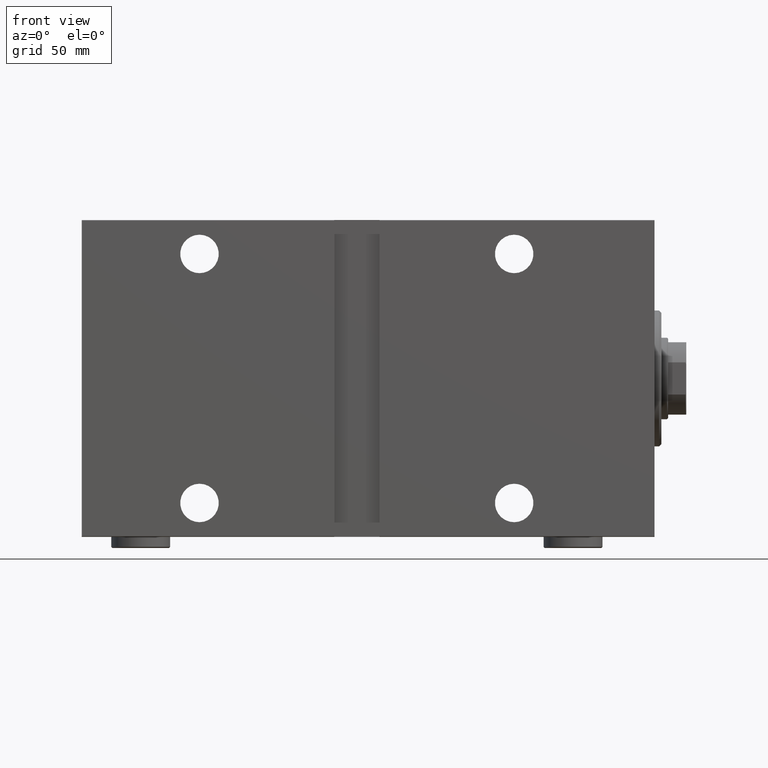
[diagram: clean part render]
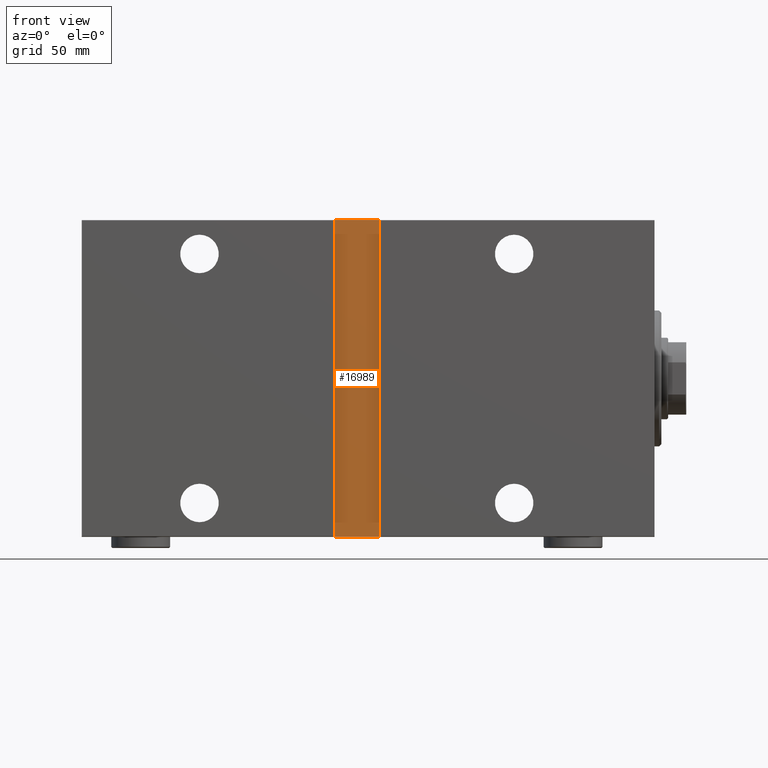
[diagram: same view with one face highlighted and labeled with its STEP entity id]
A machine part, front view. The second image highlights one B-rep face of the part: STEP entity #16989.
In plain terms, the highlighted planar face has unit normal (-0, 1, -0).
Its self-contained STEP definition (entity closure, byte-faithful):
#3310 = PLANE ( 'NONE',  #15934 ) ;
#4368 = EDGE_CURVE ( 'NONE', #8329, #40244, #15981, .T. ) ;
#8087 = VECTOR ( 'NONE', #15318, 1000.000000000000000 ) ;
#8329 = VERTEX_POINT ( 'NONE', #20717 ) ;
#8333 = CARTESIAN_POINT ( 'NONE',  ( 141.5000000000000284, 50.00000000000001421, -70.00000000000009948 ) ) ;
#9428 = ORIENTED_EDGE ( 'NONE', *, *, #18644, .T. ) ;
#10242 = VECTOR ( 'NONE', #12143, 1000.000000000000000 ) ;
#12143 = DIRECTION ( 'NONE',  ( -1.000000000000000000, 0.000000000000000000, 0.000000000000000000 ) ) ;
#13197 = DIRECTION ( 'NONE',  ( 0.000000000000000000, -1.000000000000000000, -9.912705577010316921E-17 ) ) ;
#15318 = DIRECTION ( 'NONE',  ( -0.000000000000000000, 9.912705577010316921E-17, -1.000000000000000000 ) ) ;
#15934 = AXIS2_PLACEMENT_3D ( 'NONE', #43243, #13197, #29787 ) ;
#15981 = LINE ( 'NONE', #32793, #8087 ) ;
#16989 = ADVANCED_FACE ( 'NONE', ( #34042 ), #3310, .F. ) ;
#18644 = EDGE_CURVE ( 'NONE', #40244, #23288, #42864, .T. ) ;
#19624 = VERTEX_POINT ( 'NONE', #21203 ) ;
#20717 = CARTESIAN_POINT ( 'NONE',  ( 141.5000000000000284, 50.00000000000000000, 70.00000000000001421 ) ) ;
#21203 = CARTESIAN_POINT ( 'NONE',  ( 121.5000000000000000, 50.00000000000000000, 70.00000000000001421 ) ) ;
#21624 = CARTESIAN_POINT ( 'NONE',  ( 141.5000000000000284, 50.00000000000001421, -70.00000000000001421 ) ) ;
#23288 = VERTEX_POINT ( 'NONE', #26406 ) ;
#23504 = VECTOR ( 'NONE', #30243, 1000.000000000000000 ) ;
#24050 = ORIENTED_EDGE ( 'NONE', *, *, #37635, .T. ) ;
#26406 = CARTESIAN_POINT ( 'NONE',  ( 121.5000000000000000, 50.00000000000001421, -70.00000000000009948 ) ) ;
#29787 = DIRECTION ( 'NONE',  ( 0.000000000000000000, 9.912705577010316921E-17, -1.000000000000000000 ) ) ;
#30243 = DIRECTION ( 'NONE',  ( 1.000000000000000000, -0.000000000000000000, -0.000000000000000000 ) ) ;
#31325 = VECTOR ( 'NONE', #33102, 1000.000000000000000 ) ;
#32750 = ORIENTED_EDGE ( 'NONE', *, *, #34351, .T. ) ;
#32793 = CARTESIAN_POINT ( 'NONE',  ( 141.5000000000000284, 50.00000000000001421, -70.00000000000009948 ) ) ;
#33102 = DIRECTION ( 'NONE',  ( 0.000000000000000000, -9.912705577010316921E-17, 1.000000000000000000 ) ) ;
#34042 = FACE_OUTER_BOUND ( 'NONE', #39358, .T. ) ;
#34351 = EDGE_CURVE ( 'NONE', #23288, #19624, #37133, .T. ) ;
#36729 = LINE ( 'NONE', #40986, #23504 ) ;
#36903 = CARTESIAN_POINT ( 'NONE',  ( 121.5000000000000000, 50.00000000000001421, -70.00000000000009948 ) ) ;
#37133 = LINE ( 'NONE', #36903, #31325 ) ;
#37635 = EDGE_CURVE ( 'NONE', #19624, #8329, #36729, .T. ) ;
#39358 = EDGE_LOOP ( 'NONE', ( #32750, #24050, #42076, #9428 ) ) ;
#40244 = VERTEX_POINT ( 'NONE', #21624 ) ;
#40986 = CARTESIAN_POINT ( 'NONE',  ( 141.5000000000000284, 50.00000000000000000, 70.00000000000001421 ) ) ;
#42076 = ORIENTED_EDGE ( 'NONE', *, *, #4368, .T. ) ;
#42864 = LINE ( 'NONE', #8333, #10242 ) ;
#43243 = CARTESIAN_POINT ( 'NONE',  ( 0.000000000000000000, 50.00000000000000711, 4.821179530636835640E-15 ) ) ;